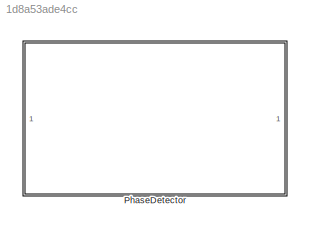
MODEL slx_1d8a53ade4cc
KIND library
CONFIG AbsTol = auto
CONFIG EnableMultiTasking = off
CONFIG FixedStep = auto
CONFIG MaxStep = auto
CONFIG MinStep = auto
CONFIG RelTol = 1e-3
CONFIG SampleTimeConstraint = Unconstrained
CONFIG SolverName = VariableStepAuto
CONFIG StartTime = 0.0
CONFIG StopTime = 10.0
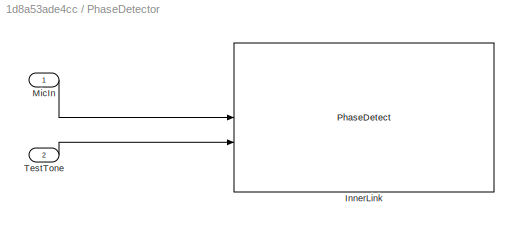
BLOCK [SubSystem] PhaseDetector
BLOCK [Reference] PhaseDetector/InnerLink  REF=PhaseDetectBtc/PhaseDetect
  SourceBlock = PhaseDetectBtc/PhaseDetect
  SourceProductName = Bose Blocklib
  SourceType = Blocklib PhaseDetector
BLOCK [Inport] PhaseDetector/MicIn
BLOCK [Inport] PhaseDetector/TestTone
  Port = 2
LINE PhaseDetector/MicIn:1 -> PhaseDetector/InnerLink:1
LINE PhaseDetector/TestTone:1 -> PhaseDetector/InnerLink:2
